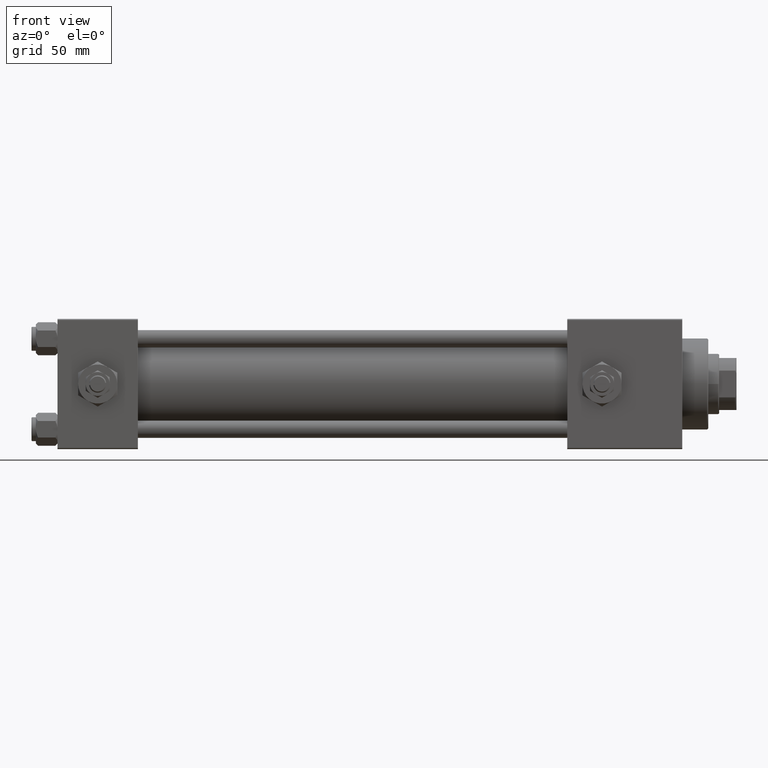
[diagram: clean part render]
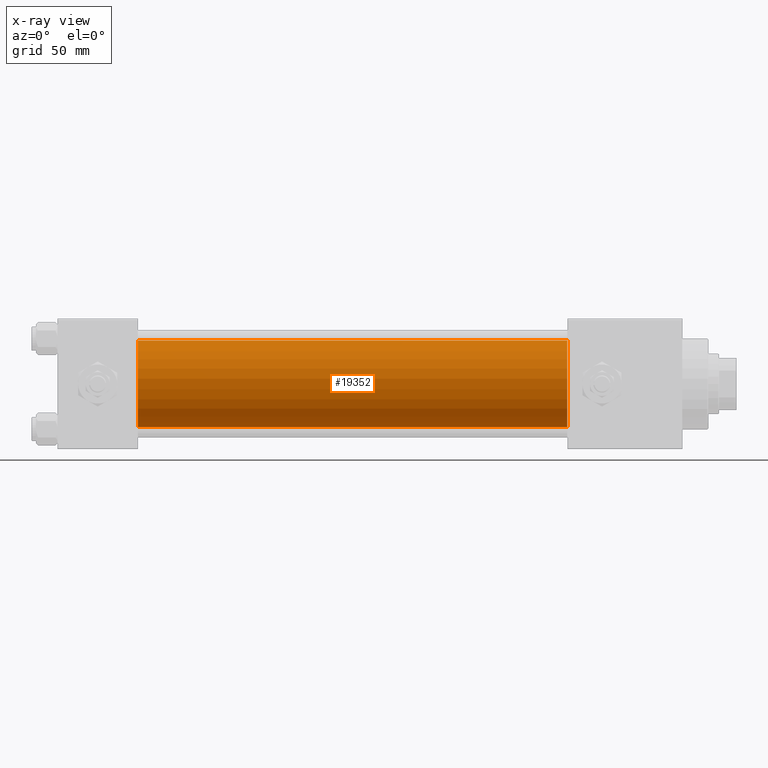
[diagram: x-ray — body ghosted, one internal face saturated and labeled with its STEP entity id]
A machine part, front view, then the same camera in x-ray: the body is ghosted and one INTERNAL B-rep face — a face not visible from any outside direction — is saturated and labeled: STEP entity #19352.
In plain terms, the highlighted cylindrical surface (partial cylindrical patch) has radius 20 mm, axis along (-1, -0, -0).
Its self-contained STEP definition (entity closure, byte-faithful):
#988 = DIRECTION ( 'NONE',  ( 0.000000000000000000, 0.000000000000000000, -1.000000000000000000 ) ) ;
#1765 = EDGE_CURVE ( 'NONE', #40359, #17868, #49534, .T. ) ;
#2494 = DIRECTION ( 'NONE',  ( 0.000000000000000000, 0.000000000000000000, 1.000000000000000000 ) ) ;
#7234 = CARTESIAN_POINT ( 'NONE',  ( 235.0000000000000284, -1.527916156705042519E-16, -20.00000000000000000 ) ) ;
#7784 = CARTESIAN_POINT ( 'NONE',  ( 235.0000000000000284, -2.602085213965210642E-15, 0.000000000000000000 ) ) ;
#8176 = ORIENTED_EDGE ( 'NONE', *, *, #39812, .T. ) ;
#8299 = DIRECTION ( 'NONE',  ( -1.000000000000000000, -0.000000000000000000, -0.000000000000000000 ) ) ;
#14532 = VERTEX_POINT ( 'NONE', #31059 ) ;
#17495 = EDGE_LOOP ( 'NONE', ( #21676, #8176, #34687, #27406 ) ) ;
#17868 = VERTEX_POINT ( 'NONE', #30742 ) ;
#19352 = ADVANCED_FACE ( 'NONE', ( #35898 ), #27924, .F. ) ;
#21125 = CARTESIAN_POINT ( 'NONE',  ( 235.0000000000000284, -2.602085213965210642E-15, 20.00000000000000000 ) ) ;
#21305 = EDGE_CURVE ( 'NONE', #14532, #40359, #33602, .T. ) ;
#21676 = ORIENTED_EDGE ( 'NONE', *, *, #45147, .T. ) ;
#23364 = VECTOR ( 'NONE', #29609, 1000.000000000000000 ) ;
#23447 = CARTESIAN_POINT ( 'NONE',  ( 235.0000000000000284, -2.602085213965210642E-15, 0.000000000000000000 ) ) ;
#23947 = DIRECTION ( 'NONE',  ( -1.000000000000000000, -0.000000000000000000, -0.000000000000000000 ) ) ;
#27406 = ORIENTED_EDGE ( 'NONE', *, *, #21305, .F. ) ;
#27924 = CYLINDRICAL_SURFACE ( 'NONE', #52174, 20.00000000000000000 ) ;
#29123 = DIRECTION ( 'NONE',  ( 1.000000000000000000, 0.000000000000000000, 0.000000000000000000 ) ) ;
#29609 = DIRECTION ( 'NONE',  ( -1.000000000000000000, -0.000000000000000000, -0.000000000000000000 ) ) ;
#30742 = CARTESIAN_POINT ( 'NONE',  ( 37.00000000000000000, -1.527916156705042519E-16, -20.00000000000000000 ) ) ;
#31059 = CARTESIAN_POINT ( 'NONE',  ( 235.0000000000000284, -2.602085213965210642E-15, 20.00000000000000000 ) ) ;
#32849 = CARTESIAN_POINT ( 'NONE',  ( 37.00000000000000000, -2.602085213965210642E-15, 0.000000000000000000 ) ) ;
#33602 = LINE ( 'NONE', #21125, #23364 ) ;
#34226 = CIRCLE ( 'NONE', #39326, 20.00000000000000000 ) ;
#34687 = ORIENTED_EDGE ( 'NONE', *, *, #1765, .F. ) ;
#35898 = FACE_OUTER_BOUND ( 'NONE', #17495, .T. ) ;
#37602 = VERTEX_POINT ( 'NONE', #40854 ) ;
#39326 = AXIS2_PLACEMENT_3D ( 'NONE', #23447, #43347, #42822 ) ;
#39812 = EDGE_CURVE ( 'NONE', #37602, #17868, #42583, .T. ) ;
#40359 = VERTEX_POINT ( 'NONE', #46923 ) ;
#40854 = CARTESIAN_POINT ( 'NONE',  ( 235.0000000000000284, -1.527916156705042519E-16, -20.00000000000000000 ) ) ;
#42583 = LINE ( 'NONE', #7234, #50148 ) ;
#42822 = DIRECTION ( 'NONE',  ( 0.000000000000000000, 0.000000000000000000, -1.000000000000000000 ) ) ;
#43347 = DIRECTION ( 'NONE',  ( 1.000000000000000000, 0.000000000000000000, 0.000000000000000000 ) ) ;
#45147 = EDGE_CURVE ( 'NONE', #14532, #37602, #34226, .T. ) ;
#45285 = AXIS2_PLACEMENT_3D ( 'NONE', #32849, #29123, #988 ) ;
#46923 = CARTESIAN_POINT ( 'NONE',  ( 37.00000000000000000, -2.602085213965210642E-15, 20.00000000000000000 ) ) ;
#49534 = CIRCLE ( 'NONE', #45285, 20.00000000000000000 ) ;
#50148 = VECTOR ( 'NONE', #8299, 1000.000000000000000 ) ;
#52174 = AXIS2_PLACEMENT_3D ( 'NONE', #7784, #23947, #2494 ) ;